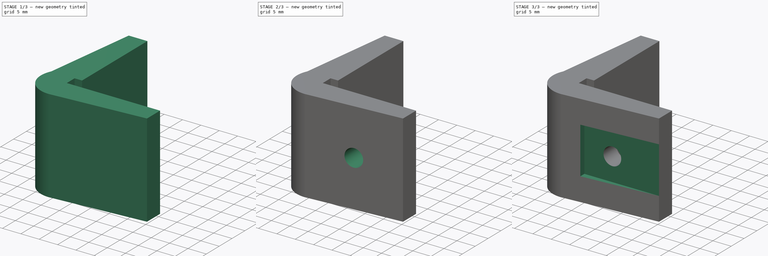
[diagram: build sequence overview — one tinted view per stage of 3, left to right]
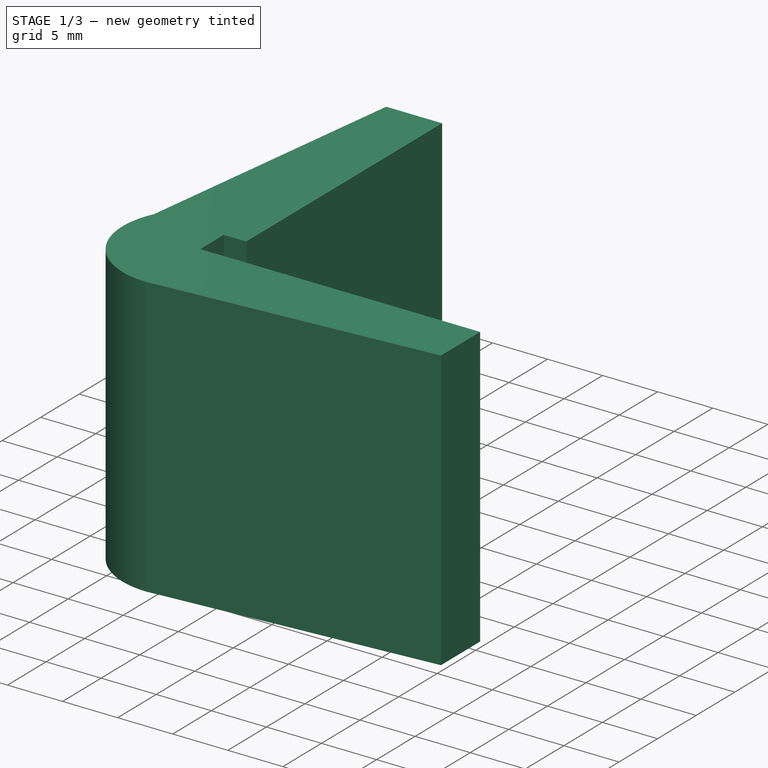
[diagram: stage 1 of 3 — iso view after this stage's code; geometry added in this stage tinted green]
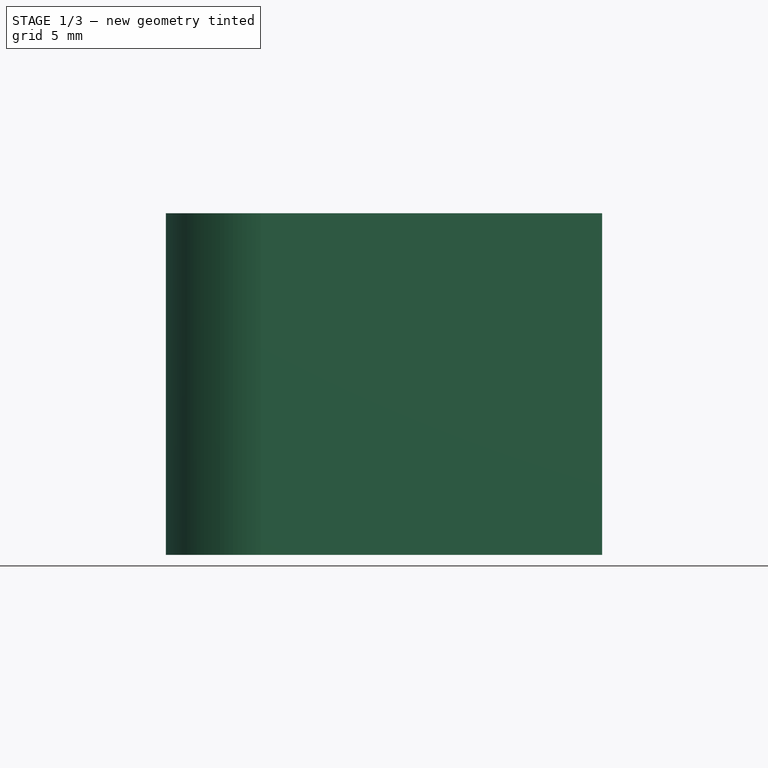
[diagram: stage 1 of 3 — front view after this stage's code; geometry added in this stage tinted green]
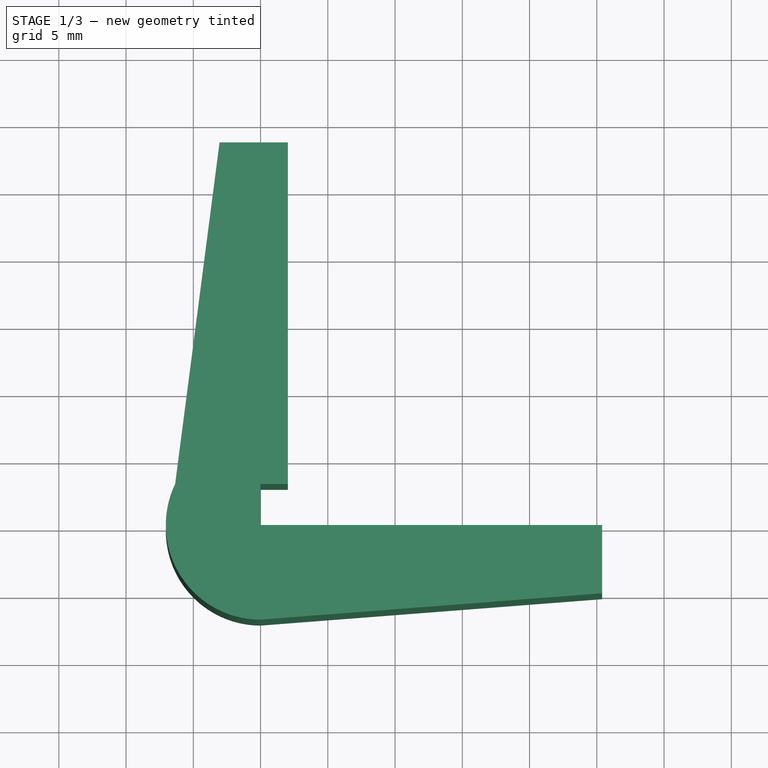
[diagram: stage 1 of 3 — top view after this stage's code; geometry added in this stage tinted green]
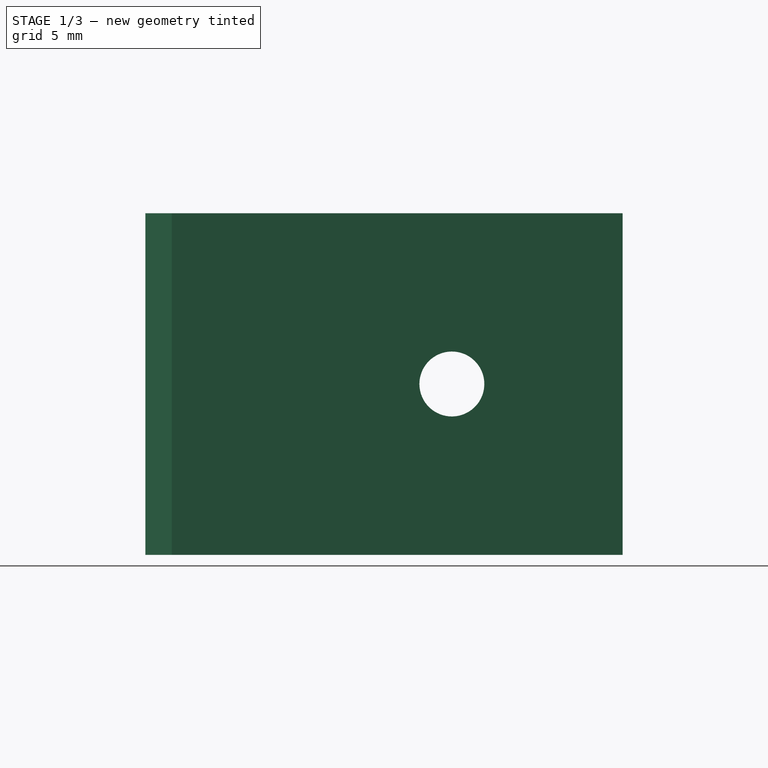
[diagram: stage 1 of 3 — right view after this stage's code; geometry added in this stage tinted green]
FCSTD DOCUMENT  (FreeCAD 0.18R16117 (Git))
Label: CLIP_2
License: All rights reserved
LicenseURL: http://en.wikipedia.org/wiki/All_rights_reserved
objects: Sketcher::SketchObject×5, PartDesign::Pocket×4, PartDesign::Pad×1, PartDesign::Body×1
note: 16 computed .brp shape members not serialized (recipe doc carries the construction recipe); baked Part::Feature solids carry a one-line shape summary decoded from their .brp

FEATURE [Sketcher::SketchObject] Sketch
  MapMode = 5
  Support = -> [XY_Plane]
  sketch-geometry (14):
    g0: LineSegment [constr] StartX=0 StartY=0 StartZ=0 EndX=25.4 EndY=0 EndZ=0
    g1: LineSegment [constr] StartX=0 StartY=0 StartZ=0 EndX=0 EndY=3.048 EndZ=0
    g2: LineSegment [constr] StartX=0 StartY=3.048 StartZ=0 EndX=2.032 EndY=3.048 EndZ=0
    g3: LineSegment [constr] StartX=2.032 StartY=3.048 StartZ=0 EndX=2.032 EndY=28.448 EndZ=0
    g4: LineSegment StartX=25.4 StartY=0 StartZ=0 EndX=0 EndY=0 EndZ=0
    g5: LineSegment StartX=0 StartY=3.048 StartZ=0 EndX=0 EndY=0 EndZ=0
    g6: LineSegment StartX=0 StartY=3.048 StartZ=0 EndX=2.032 EndY=3.048 EndZ=0
    g7: LineSegment StartX=2.032 StartY=3.048 StartZ=0 EndX=2.032 EndY=28.448 EndZ=0
    g8: LineSegment StartX=2.032 StartY=28.448 StartZ=0 EndX=-3.048 EndY=28.448 EndZ=0
    g9: LineSegment StartX=-3.048 StartY=28.448 StartZ=0 EndX=-6.35 EndY=3.048 EndZ=0
    g10: LineSegment [constr] StartX=0 StartY=3.048 StartZ=0 EndX=-6.35 EndY=3.048 EndZ=0
    g11: ArcOfCircle CenterX=0 CenterY=0 CenterZ=0 NormalX=0 NormalY=0 NormalZ=1 AngleXU=0 Radius=7.04364 StartAngle=2.69407 EndAngle=4.71239
    g12: LineSegment StartX=-1.3e-15 StartY=-7.04364 StartZ=0 EndX=25.4 EndY=-5.08 EndZ=0
    g13: LineSegment StartX=25.4 StartY=0 StartZ=0 EndX=25.4 EndY=-5.08 EndZ=0
  constraints (36):
    c: Coincident(g0,g-1)
    c: PointOnObject(g0,g-1)
    c: Coincident(g1,g-1)
    c: Vertical(g1)
    c: Coincident(g2,g1)
    c: Horizontal(g2)
    c: Coincident(g3,g2)
    c: Vertical(g3)
    c: Distance(g0) = 25.4
    c: Distance(g1) = 3.048
    c: Distance(g2) = 2.032
    c: Equal(g3,g0)
    c: Coincident(g4,g0)
    c: Coincident(g4,g-1)
    c: Coincident(g5,g1)
    c: Coincident(g5,g4)
    c: Coincident(g6,g5)
    c: Coincident(g6,g2)
    c: Coincident(g7,g6)
    c: Coincident(g7,g3)
    c: Coincident(g8,g7)
    c: Horizontal(g8)
    c: Coincident(g9,g8)
    c: Coincident(g10,g5)
    c: Horizontal(g10)
    c: Coincident(g9,g10)
    c: Distance(g8) = 5.08
    c: Distance(g10) = 6.35
    c: Coincident(g11,g4)
    c: Coincident(g11,g9)
    c: PointOnObject(g11,g-2)
    c: Coincident(g12,g11)
    c: Coincident(g13,g4)
    c: Coincident(g13,g12)
    c: Vertical(g13)
    c: Distance(g13) = 5.08
FEATURE [PartDesign::Pad] Pad
  Length = 25.4
  Length2 = 100
  Profile = -> Sketch
  Type = 0
FEATURE [Sketcher::SketchObject] Sketch001
  ExternalGeometry = -> [Pad]
  MapMode = 5
  Placement = pos=(2.032,0,0) rot=(0.57735,0.57735,0.57735;2.0944rad)
  Support = -> [Pad]
  sketch-geometry (4):
    g0: LineSegment [constr] StartX=3.048 StartY=25.4 StartZ=0 EndX=28.448 EndY=0 EndZ=0
    g1: LineSegment [constr] StartX=3.048 StartY=0 StartZ=0 EndX=28.448 EndY=25.4 EndZ=0
    g2: GeomPoint X=15.748 Y=12.7 Z=0
    g3: Circle CenterX=15.748 CenterY=12.7 CenterZ=0 NormalX=0 NormalY=0 NormalZ=1 AngleXU=0 Radius=2.413
  constraints (8):
    c: Coincident(g0,g-4)
    c: Coincident(g0,g-3)
    c: Coincident(g1,g-4)
    c: Coincident(g1,g-3)
    c: PointOnObject(g2,g1)
    c: PointOnObject(g2,g0)
    c: Coincident(g3,g2)
    c: Diameter(g3) = 4.826
FEATURE [PartDesign::Pocket] Pocket
  BaseFeature = -> Pad
  Length = 10.16
  Length2 = 100
  Profile = -> Sketch001
  Type = 0
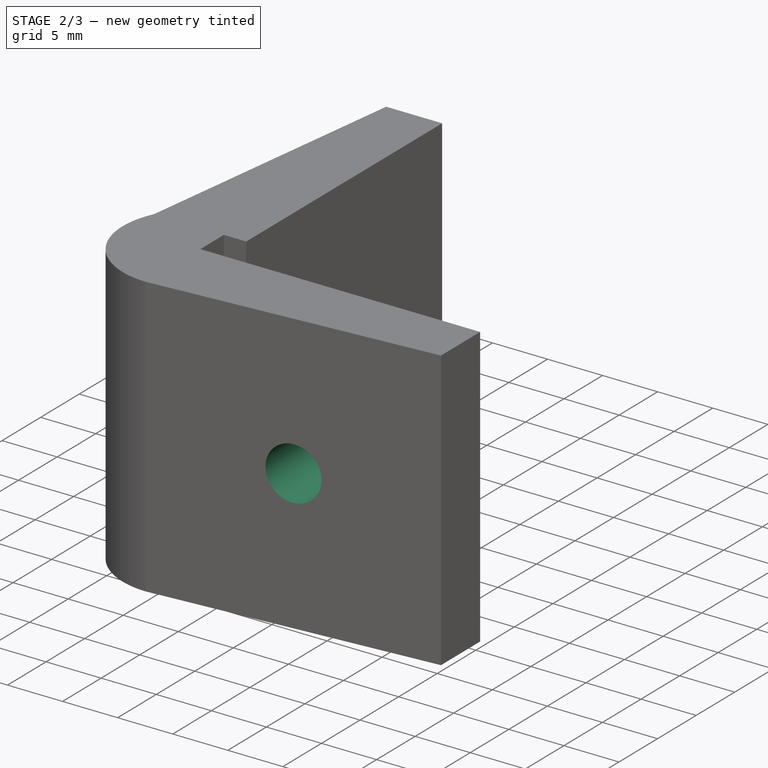
[diagram: stage 2 of 3 — iso view after this stage's code; geometry added in this stage tinted green]
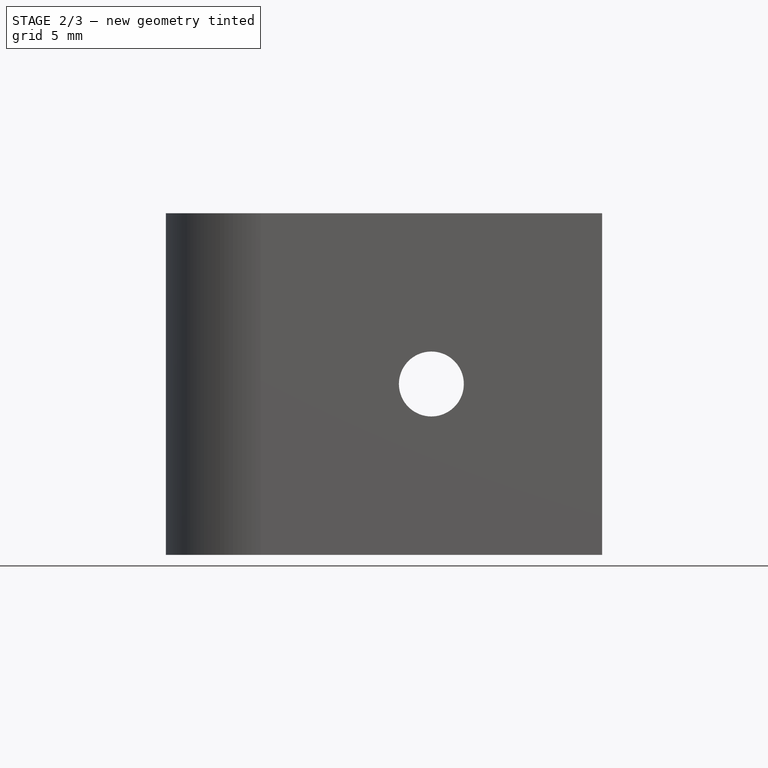
[diagram: stage 2 of 3 — front view after this stage's code; geometry added in this stage tinted green]
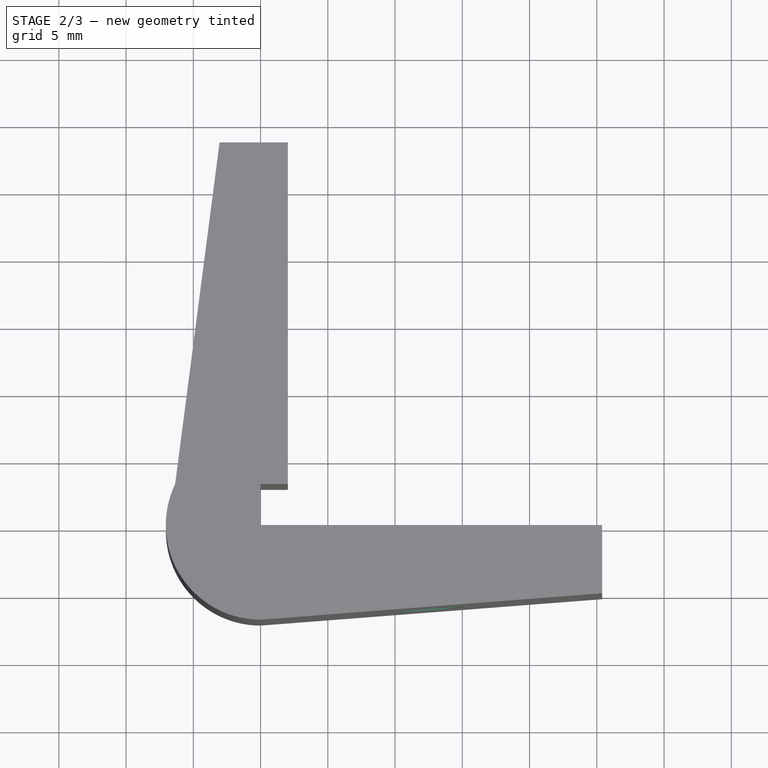
[diagram: stage 2 of 3 — top view after this stage's code; geometry added in this stage tinted green]
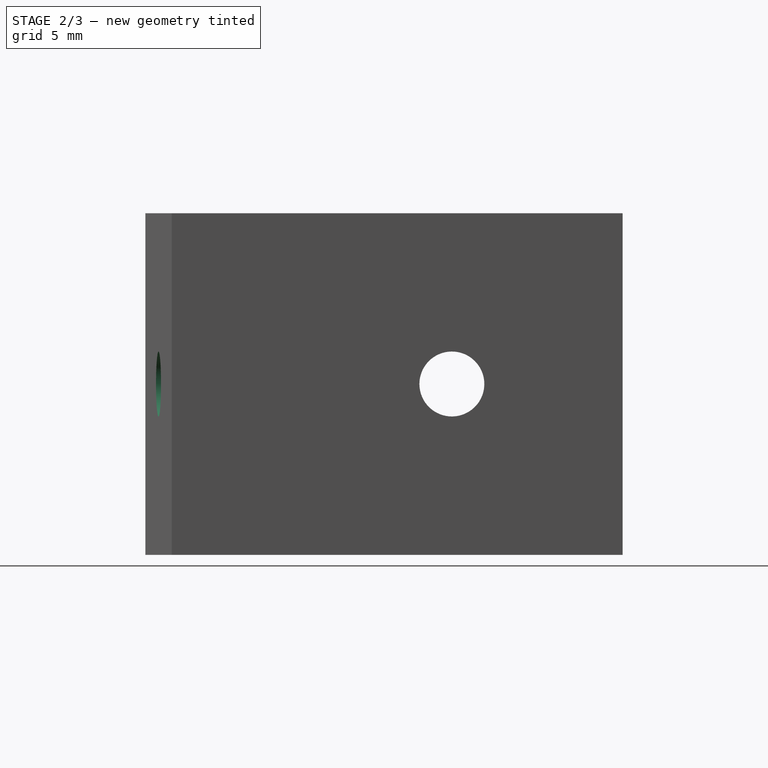
[diagram: stage 2 of 3 — right view after this stage's code; geometry added in this stage tinted green]
FEATURE [Sketcher::SketchObject] Sketch002
  ExternalGeometry = -> [Pocket]
  MapMode = 5
  Placement = pos=(0,0,0) rot=(0,0.707107,0.707107;3.14159rad)
  Support = -> [Pocket]
  sketch-geometry (4):
    g0: LineSegment [constr] StartX=-25.4 StartY=25.4 StartZ=0 EndX=0 EndY=0 EndZ=0
    g1: LineSegment [constr] StartX=-25.4 StartY=0 StartZ=0 EndX=0 EndY=25.4 EndZ=0
    g2: GeomPoint X=-12.7 Y=12.7 Z=0
    g3: Circle CenterX=-12.7 CenterY=12.7 CenterZ=0 NormalX=0 NormalY=0 NormalZ=1 AngleXU=0 Radius=2.413
  constraints (8):
    c: Coincident(g0,g-4)
    c: Coincident(g0,g-1)
    c: Coincident(g1,g-5)
    c: Coincident(g1,g-4)
    c: PointOnObject(g2,g0)
    c: PointOnObject(g2,g1)
    c: Coincident(g3,g2)
    c: Diameter(g3) = 4.826
FEATURE [PartDesign::Pocket] Pocket001
  BaseFeature = -> Pocket
  Length = 10.16
  Length2 = 100
  Profile = -> Sketch002
  Type = 0
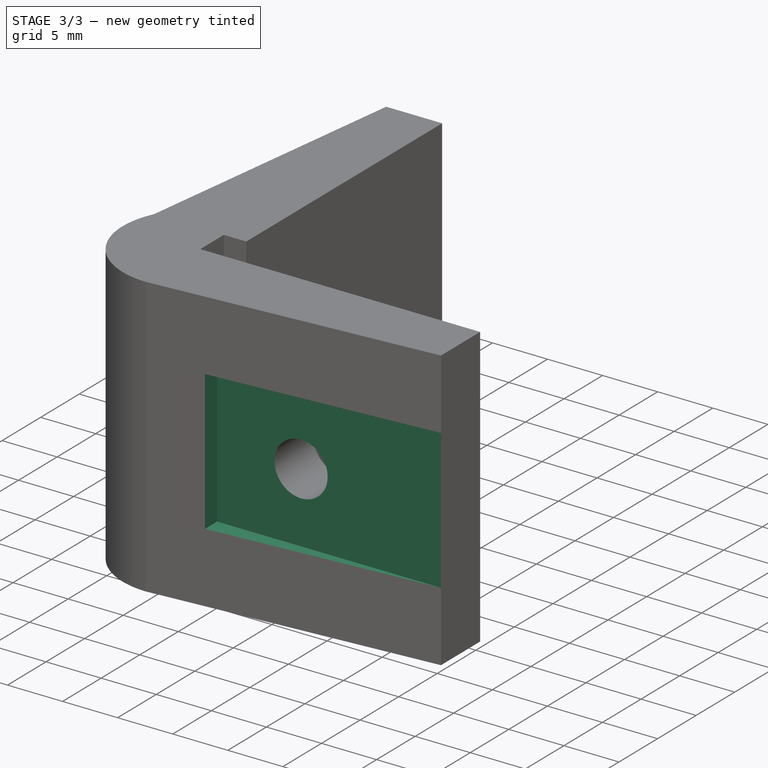
[diagram: stage 3 of 3 — iso view after this stage's code; geometry added in this stage tinted green]
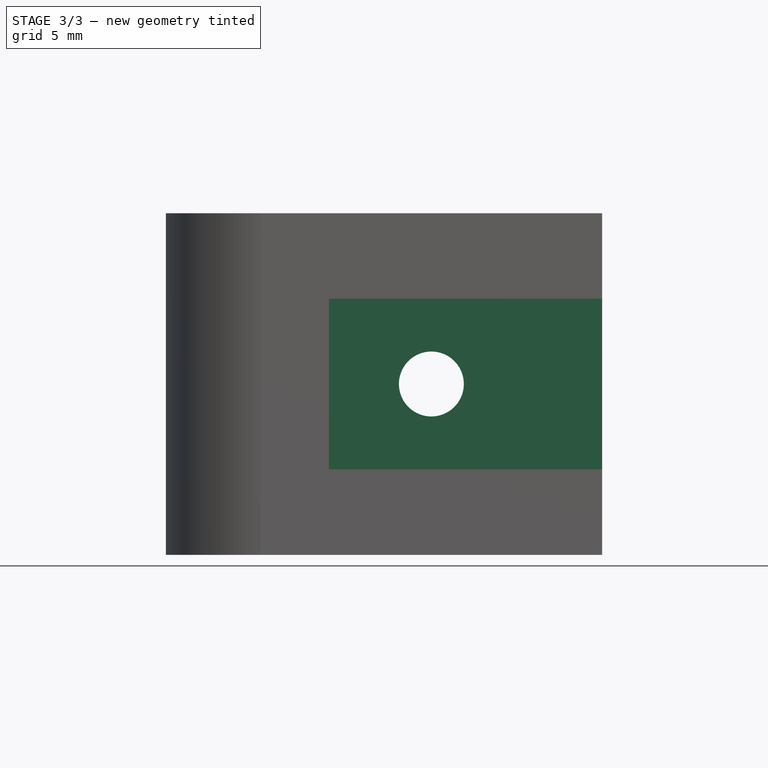
[diagram: stage 3 of 3 — front view after this stage's code; geometry added in this stage tinted green]
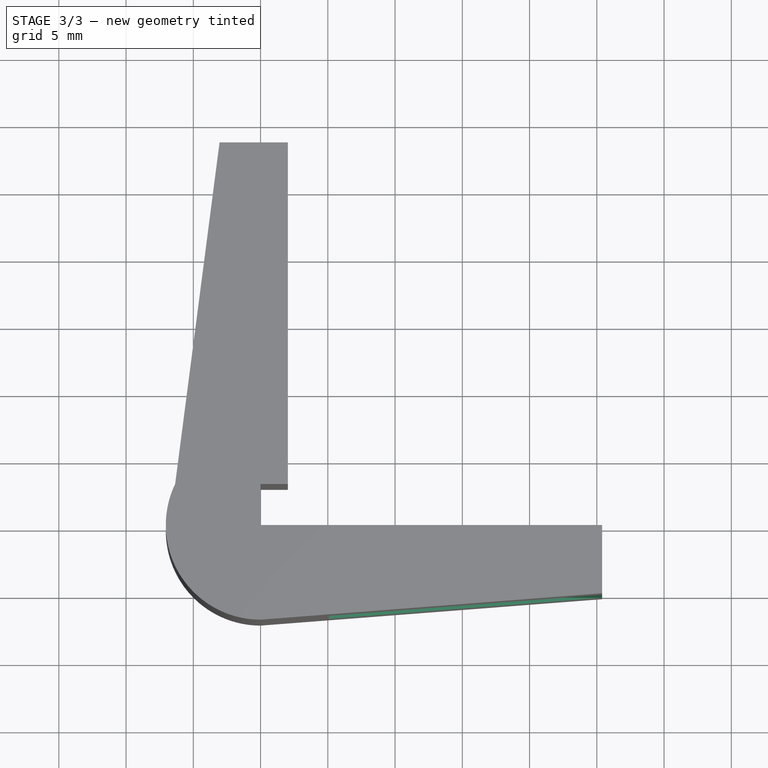
[diagram: stage 3 of 3 — top view after this stage's code; geometry added in this stage tinted green]
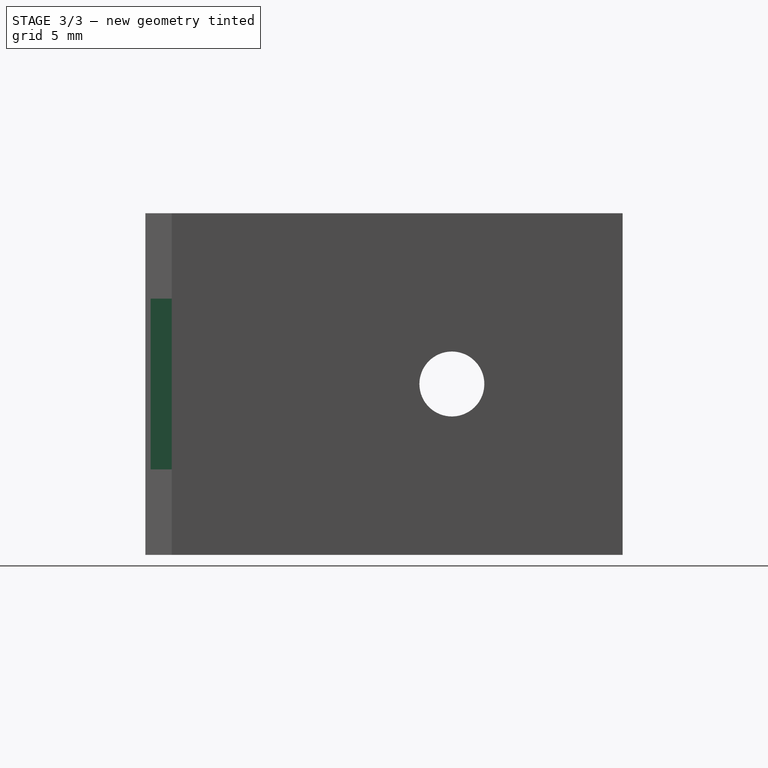
[diagram: stage 3 of 3 — right view after this stage's code; geometry added in this stage tinted green]
FEATURE [Sketcher::SketchObject] Sketch003
  ExternalGeometry = -> [Pocket001]
  MapMode = 5
  Placement = pos=(0,28.448,0) rot=(0,0.707107,0.707107;3.14159rad)
  Support = -> [Pocket001]
  sketch-geometry (6):
    g0: LineSegment StartX=3.048 StartY=19.05 StartZ=0 EndX=6.35 EndY=19.05 EndZ=0
    g1: LineSegment StartX=6.35 StartY=19.05 StartZ=0 EndX=6.35 EndY=6.35 EndZ=0
    g2: LineSegment StartX=6.35 StartY=6.35 StartZ=0 EndX=3.048 EndY=6.35 EndZ=0
    g3: LineSegment StartX=3.048 StartY=6.35 StartZ=0 EndX=3.048 EndY=19.05 EndZ=0
    g4: LineSegment [constr] StartX=4.38531 StartY=12.7 StartZ=0 EndX=4.38531 EndY=19.05 EndZ=0
    g5: LineSegment [constr] StartX=4.38531 StartY=12.7 StartZ=0 EndX=4.38531 EndY=6.35 EndZ=0
  constraints (18):
    c: Coincident(g0,g1)
    c: Coincident(g1,g2)
    c: Coincident(g2,g3)
    c: Coincident(g3,g0)
    c: Horizontal(g0)
    c: Horizontal(g2)
    c: Vertical(g1)
    c: Vertical(g3)
    c: PointOnObject(g0,g-4)
    c: PointOnObject(g1,g-3)
    c: Distance(g3) = 12.7
    c: Coincident(g4,g-5)
    c: PointOnObject(g4,g0)
    c: Vertical(g4)
    c: Coincident(g5,g4)
    c: PointOnObject(g5,g2)
    c: Vertical(g5)
    c: Equal(g5,g4)
FEATURE [PartDesign::Pocket] Pocket002
  BaseFeature = -> Pocket001
  Length = 20.32
  Length2 = 100
  Profile = -> Sketch003
  Type = 0
FEATURE [Sketcher::SketchObject] Sketch004
  ExternalGeometry = -> [Pocket002]
  MapMode = 5
  Placement = pos=(25.4,0,0) rot=(0.57735,0.57735,0.57735;2.0944rad)
  Support = -> [Pocket002]
  sketch-geometry (6):
    g0: LineSegment StartX=-7.04364 StartY=19.05 StartZ=0 EndX=-5.08 EndY=19.05 EndZ=0
    g1: LineSegment StartX=-5.08 StartY=19.05 StartZ=0 EndX=-5.08 EndY=6.35 EndZ=0
    g2: LineSegment StartX=-5.08 StartY=6.35 StartZ=0 EndX=-7.04364 EndY=6.35 EndZ=0
    g3: LineSegment StartX=-7.04364 StartY=6.35 StartZ=0 EndX=-7.04364 EndY=19.05 EndZ=0
    g4: LineSegment [constr] StartX=-6.24836 StartY=12.7 StartZ=0 EndX=-6.24836 EndY=19.05 EndZ=0
    g5: LineSegment [constr] StartX=-6.24836 StartY=12.7 StartZ=0 EndX=-6.24836 EndY=6.35 EndZ=0
  constraints (18):
    c: Coincident(g0,g1)
    c: Coincident(g1,g2)
    c: Coincident(g2,g3)
    c: Coincident(g3,g0)
    c: Horizontal(g0)
    c: Horizontal(g2)
    c: Vertical(g1)
    c: Vertical(g3)
    c: PointOnObject(g0,g-3)
    c: PointOnObject(g1,g-4)
    c: Distance(g3) = 12.7
    c: Coincident(g4,g-5)
    c: PointOnObject(g4,g0)
    c: Vertical(g4)
    c: Coincident(g5,g4)
    c: PointOnObject(g5,g2)
    c: Vertical(g5)
    c: Equal(g5,g4)
FEATURE [PartDesign::Pocket] Pocket003
  BaseFeature = -> Pocket002
  Length = 20.32
  Length2 = 100
  Profile = -> Sketch004
  Type = 0
FEATURE [PartDesign::Body] Body
  Group = -> [Sketch,Pad,Sketch001,Pocket,Sketch002,Pocket001,Sketch003,Pocket002,Sketch004,Pocket003]
  Origin = -> Origin
  Tip = -> Pocket003
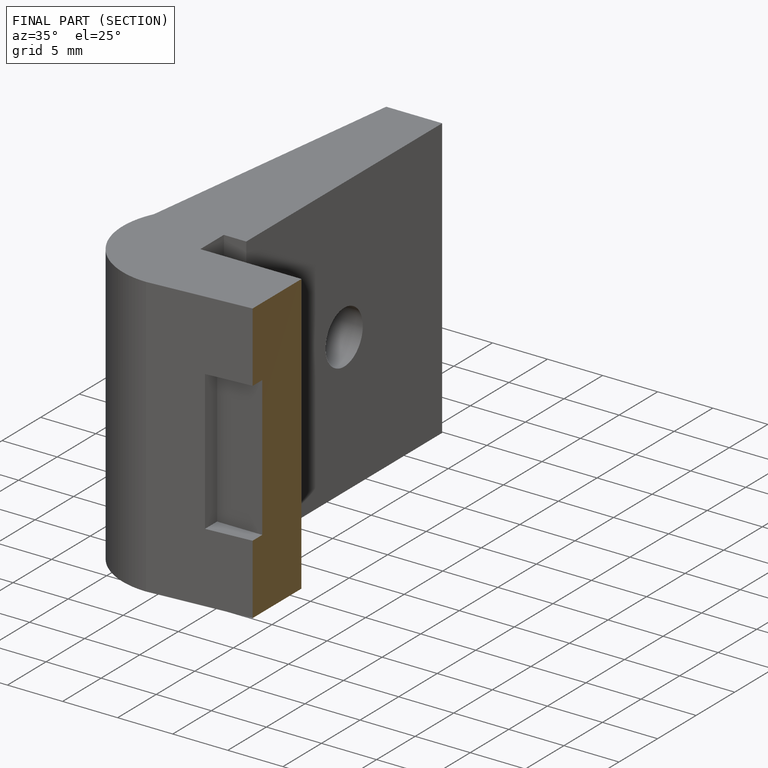
[diagram: finished part — half-section view (interior)]
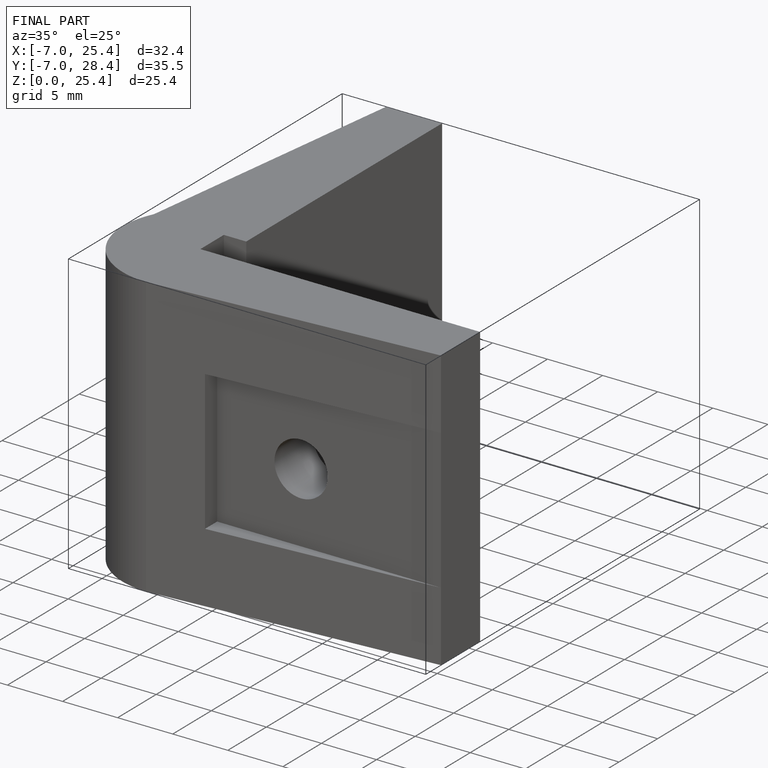
[diagram: finished part — iso view with bounding-box wireframe]
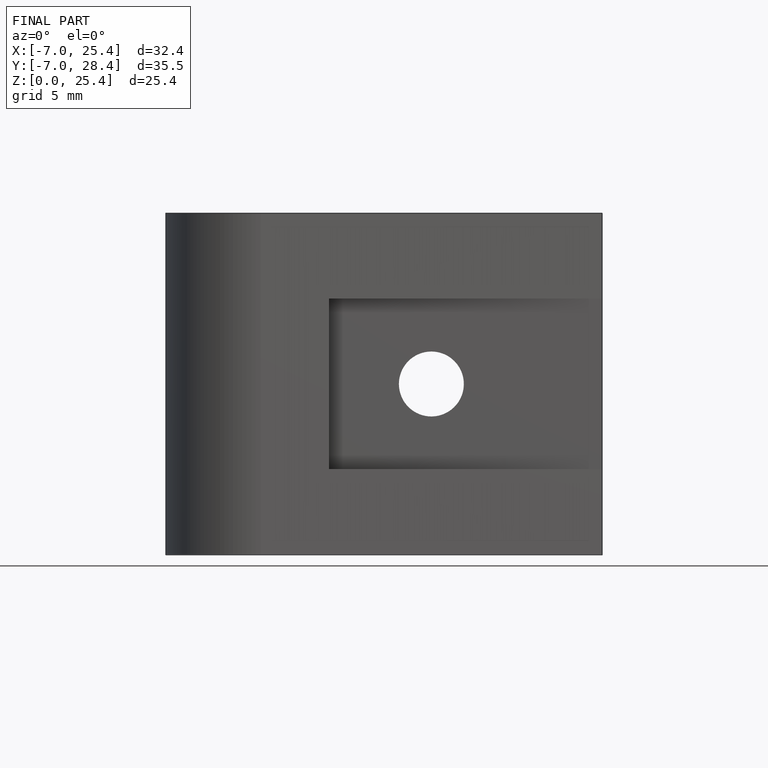
[diagram: finished part — front view with bounding-box wireframe]
